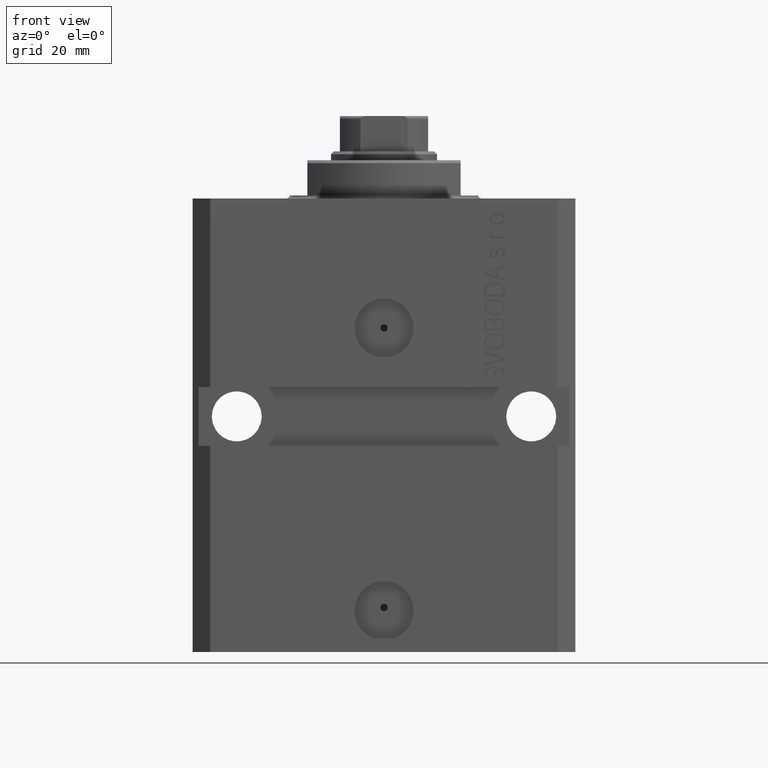
[diagram: clean part render]
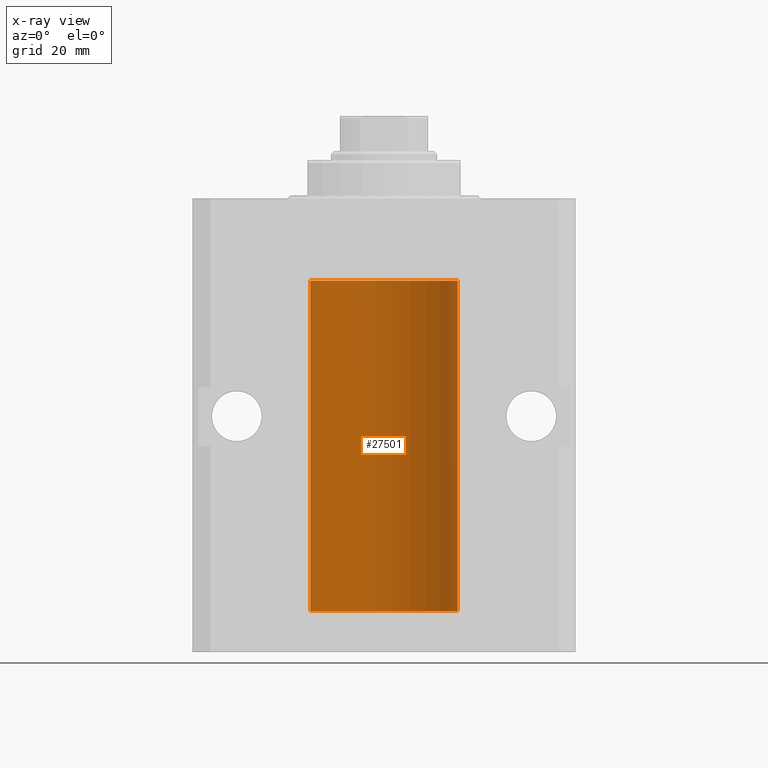
[diagram: x-ray — body ghosted, one internal face saturated and labeled with its STEP entity id]
A machine part, front view, then the same camera in x-ray: the body is ghosted and one INTERNAL B-rep face — a face not visible from any outside direction — is saturated and labeled: STEP entity #27501.
In plain terms, the highlighted cylindrical surface (partial cylindrical patch) has radius 12.5 mm, axis along (0, 0, 1).
Its self-contained STEP definition (entity closure, byte-faithful):
#30 = AXIS2_PLACEMENT_3D ( 'NONE', #15588, #19175, #33730 ) ;
#96 = CARTESIAN_POINT ( 'NONE',  ( -12.49011732893843885, 0.5003763274120245352, -65.38348111289289477 ) ) ;
#1081 = DIRECTION ( 'NONE',  ( -0.000000000000000000, -0.000000000000000000, 1.000000000000000000 ) ) ;
#2005 = VECTOR ( 'NONE', #7811, 1000.000000000000000 ) ;
#2309 = VECTOR ( 'NONE', #1081, 1000.000000000000000 ) ;
#2655 = DIRECTION ( 'NONE',  ( 0.000000000000000000, 0.000000000000000000, 1.000000000000000000 ) ) ;
#2970 = CARTESIAN_POINT ( 'NONE',  ( -12.49915784441386890, 0.1636601911727943726, -64.39126818989430490 ) ) ;
#3207 = CARTESIAN_POINT ( 'NONE',  ( -12.49631005746706514, 0.3253680783018499389, -65.55856740465391397 ) ) ;
#3441 = CARTESIAN_POINT ( 'NONE',  ( -12.48436813453758809, 0.6249418250771181516, -64.83668996798922990 ) ) ;
#4636 = ORIENTED_EDGE ( 'NONE', *, *, #45570, .T. ) ;
#4812 = LINE ( 'NONE', #19395, #15504 ) ;
#5045 = DIRECTION ( 'NONE',  ( 0.000000000000000000, 0.000000000000000000, 1.000000000000000000 ) ) ;
#5647 = EDGE_CURVE ( 'NONE', #22381, #33231, #24793, .T. ) ;
#6257 = AXIS2_PLACEMENT_3D ( 'NONE', #35347, #2655, #24627 ) ;
#6488 = CARTESIAN_POINT ( 'NONE',  ( 12.50000000000000000, 0.000000000000000000, -70.09999999999999432 ) ) ;
#6541 = CARTESIAN_POINT ( 'NONE',  ( -12.49999999999999645, 0.08260426088728485550, -64.37499999999998579 ) ) ;
#6938 = ORIENTED_EDGE ( 'NONE', *, *, #44147, .F. ) ;
#7555 = CIRCLE ( 'NONE', #21293, 12.50000000000000000 ) ;
#7811 = DIRECTION ( 'NONE',  ( -0.000000000000000000, -0.000000000000000000, 1.000000000000000000 ) ) ;
#8391 = ORIENTED_EDGE ( 'NONE', *, *, #33893, .F. ) ;
#8856 = VERTEX_POINT ( 'NONE', #25184 ) ;
#9507 = CARTESIAN_POINT ( 'NONE',  ( -12.50000000000000000, 1.530808498934191521E-15, -70.09999999999999432 ) ) ;
#9731 = CARTESIAN_POINT ( 'NONE',  ( -12.48436813453758454, 0.6249418250771192618, -21.83668996798922635 ) ) ;
#10165 = DIRECTION ( 'NONE',  ( -0.000000000000000000, -0.000000000000000000, 1.000000000000000000 ) ) ;
#10202 = CARTESIAN_POINT ( 'NONE',  ( -12.49625855304193678, 0.3150454781038042329, -21.45402800297484802 ) ) ;
#10310 = EDGE_CURVE ( 'NONE', #13379, #43181, #7555, .T. ) ;
#11658 = CARTESIAN_POINT ( 'NONE',  ( -12.50000000000000000, -2.089494013101375120E-17, -21.37499999999999645 ) ) ;
#11997 = EDGE_CURVE ( 'NONE', #43181, #33231, #40464, .T. ) ;
#12405 = EDGE_LOOP ( 'NONE', ( #17502, #26863, #4636, #16954, #8391, #14684, #6938, #17262 ) ) ;
#12479 = DIRECTION ( 'NONE',  ( -0.000000000000000000, -0.000000000000000000, 1.000000000000000000 ) ) ;
#13083 = CARTESIAN_POINT ( 'NONE',  ( -12.50000000000017941, 3.883381646606358354E-13, -22.62500000000358824 ) ) ;
#13379 = VERTEX_POINT ( 'NONE', #6488 ) ;
#13950 = CARTESIAN_POINT ( 'NONE',  ( -12.49625855304193500, 0.3150454781038046770, -64.45402800297485157 ) ) ;
#14194 = CARTESIAN_POINT ( 'NONE',  ( -12.49999999999999822, 0.1631761135151225950, -65.62499999999985789 ) ) ;
#14684 = ORIENTED_EDGE ( 'NONE', *, *, #38498, .T. ) ;
#14971 = LINE ( 'NONE', #40494, #2005 ) ;
#15442 = CARTESIAN_POINT ( 'NONE',  ( -12.50000000000000000, -2.089494013101375120E-17, -21.37499999999999645 ) ) ;
#15504 = VECTOR ( 'NONE', #12479, 1000.000000000000000 ) ;
#15588 = CARTESIAN_POINT ( 'NONE',  ( 0.000000000000000000, 0.000000000000000000, -70.09999999999999432 ) ) ;
#16171 = CARTESIAN_POINT ( 'NONE',  ( 12.50000000000000000, 0.000000000000000000, -13.99999999999999822 ) ) ;
#16954 = ORIENTED_EDGE ( 'NONE', *, *, #30166, .T. ) ;
#17108 = CARTESIAN_POINT ( 'NONE',  ( -12.48520330846397819, 0.6088355886774127201, -22.16325431852561323 ) ) ;
#17262 = ORIENTED_EDGE ( 'NONE', *, *, #5647, .T. ) ;
#17502 = ORIENTED_EDGE ( 'NONE', *, *, #11997, .F. ) ;
#19175 = DIRECTION ( 'NONE',  ( -0.000000000000000000, -0.000000000000000000, 1.000000000000000000 ) ) ;
#19395 = CARTESIAN_POINT ( 'NONE',  ( -12.50000000000000000, 1.530808498934191521E-15, -70.09999999999999432 ) ) ;
#19801 = VERTEX_POINT ( 'NONE', #16171 ) ;
#20942 = CARTESIAN_POINT ( 'NONE',  ( -12.48810268015257563, 0.5573155909661349217, -21.67347410093867666 ) ) ;
#21293 = AXIS2_PLACEMENT_3D ( 'NONE', #29898, #5045, #44430 ) ;
#22381 = VERTEX_POINT ( 'NONE', #37436 ) ;
#22634 = CARTESIAN_POINT ( 'NONE',  ( -12.49915784441386890, 0.1636601911727947889, -21.39126818989430490 ) ) ;
#22745 = CYLINDRICAL_SURFACE ( 'NONE', #30, 12.50000000000000000 ) ;
#23835 = CARTESIAN_POINT ( 'NONE',  ( -12.49999999999999289, 0.1631761135151241215, -22.62499999999984013 ) ) ;
#24069 = CARTESIAN_POINT ( 'NONE',  ( -12.49011732893843529, 0.5003763274120274218, -22.38348111289287701 ) ) ;
#24627 = DIRECTION ( 'NONE',  ( 1.000000000000000000, 0.000000000000000000, 0.000000000000000000 ) ) ;
#24757 = CARTESIAN_POINT ( 'NONE',  ( -12.48809959379011403, 0.5462151254764975317, -22.31461370481611795 ) ) ;
#24793 = B_SPLINE_CURVE_WITH_KNOTS ( 'NONE', 3,
 ( #39243, #6541, #2970, #13950, #46625, #28521, #3441, #39716, #43978, #35897, #96, #3207, #14194, #40654 ),
 .UNSPECIFIED., .F., .F.,
 ( 4, 2, 2, 2, 2, 2, 4 ),
 ( 3.492495172846855184E-18, 0.0002442924852390798859, 0.0004885849704781563023, 0.0009771699409563386254, 0.001221462426195450658, 0.001465754911434562473, 0.001954339881912786538 ),
 .UNSPECIFIED. ) ;
#25184 = CARTESIAN_POINT ( 'NONE',  ( -12.50000000000000000, 1.530808498934191521E-15, -13.99999999999999822 ) ) ;
#25815 = VERTEX_POINT ( 'NONE', #38695 ) ;
#26221 = CARTESIAN_POINT ( 'NONE',  ( -12.50000000000000000, 0.08260426088729219685, -21.37500000000000000 ) ) ;
#26385 = CARTESIAN_POINT ( 'NONE',  ( -12.50000000000000000, 1.530808498934191521E-15, -70.09999999999999432 ) ) ;
#26863 = ORIENTED_EDGE ( 'NONE', *, *, #10310, .F. ) ;
#27501 = ADVANCED_FACE ( 'NONE', ( #44453 ), #22745, .F. ) ;
#28521 = CARTESIAN_POINT ( 'NONE',  ( -12.48810268015257741, 0.5573155909661293705, -64.67347410093867666 ) ) ;
#29898 = CARTESIAN_POINT ( 'NONE',  ( 0.000000000000000000, 0.000000000000000000, -70.09999999999999432 ) ) ;
#30166 = EDGE_CURVE ( 'NONE', #19801, #8856, #45881, .T. ) ;
#31230 = CARTESIAN_POINT ( 'NONE',  ( -12.49422197749724006, 0.3843754434364375916, -21.50047099568095277 ) ) ;
#32554 = B_SPLINE_CURVE_WITH_KNOTS ( 'NONE', 3,
 ( #11658, #26221, #22634, #10202, #31230, #20942, #9731, #35022, #17108, #24757, #24069, #46227, #23835, #13083 ),
 .UNSPECIFIED., .F., .F.,
 ( 4, 2, 2, 2, 2, 2, 4 ),
 ( 2.030551168097110502E-20, 0.0002442924852390969078, 0.0004885849704781938157, 0.0009771699409563880650, 0.001221462426195485135, 0.001465754911434582423, 0.001954339881912776130 ),
 .UNSPECIFIED. ) ;
#33231 = VERTEX_POINT ( 'NONE', #40199 ) ;
#33730 = DIRECTION ( 'NONE',  ( 1.000000000000000000, 0.000000000000000000, 0.000000000000000000 ) ) ;
#33893 = EDGE_CURVE ( 'NONE', #39506, #8856, #4812, .T. ) ;
#35022 = CARTESIAN_POINT ( 'NONE',  ( -12.48436376893640443, 0.6250290278979917513, -22.08132082824473486 ) ) ;
#35347 = CARTESIAN_POINT ( 'NONE',  ( 0.000000000000000000, 0.000000000000000000, -13.99999999999999822 ) ) ;
#35897 = CARTESIAN_POINT ( 'NONE',  ( -12.48809959379011580, 0.5462151254764966435, -65.31461370481613926 ) ) ;
#37436 = CARTESIAN_POINT ( 'NONE',  ( -12.50000000000000000, -1.053276923642966949E-14, -64.37500000000000000 ) ) ;
#38498 = EDGE_CURVE ( 'NONE', #39506, #25815, #32554, .T. ) ;
#38695 = CARTESIAN_POINT ( 'NONE',  ( -12.50000000000017941, 3.883381646606358354E-13, -22.62500000000358824 ) ) ;
#39243 = CARTESIAN_POINT ( 'NONE',  ( -12.50000000000000000, -1.053276923642966949E-14, -64.37500000000000000 ) ) ;
#39506 = VERTEX_POINT ( 'NONE', #15442 ) ;
#39716 = CARTESIAN_POINT ( 'NONE',  ( -12.48436376893640265, 0.6250290278979918623, -65.08132082824472775 ) ) ;
#40144 = VECTOR ( 'NONE', #10165, 1000.000000000000000 ) ;
#40199 = CARTESIAN_POINT ( 'NONE',  ( -12.50000000000017941, 3.883381774819353300E-13, -65.62500000000359535 ) ) ;
#40464 = LINE ( 'NONE', #26385, #2309 ) ;
#40494 = CARTESIAN_POINT ( 'NONE',  ( -12.50000000000000000, 1.530808498934191521E-15, -70.09999999999999432 ) ) ;
#40654 = CARTESIAN_POINT ( 'NONE',  ( -12.50000000000017941, 3.883381774819353300E-13, -65.62500000000359535 ) ) ;
#42853 = CARTESIAN_POINT ( 'NONE',  ( 12.50000000000000000, 0.000000000000000000, -70.09999999999999432 ) ) ;
#43181 = VERTEX_POINT ( 'NONE', #9507 ) ;
#43978 = CARTESIAN_POINT ( 'NONE',  ( -12.48520330846398174, 0.6088355886774118320, -65.16325431852561678 ) ) ;
#44147 = EDGE_CURVE ( 'NONE', #22381, #25815, #14971, .T. ) ;
#44430 = DIRECTION ( 'NONE',  ( 1.000000000000000000, 0.000000000000000000, 0.000000000000000000 ) ) ;
#44453 = FACE_OUTER_BOUND ( 'NONE', #12405, .T. ) ;
#45570 = EDGE_CURVE ( 'NONE', #13379, #19801, #46195, .T. ) ;
#45881 = CIRCLE ( 'NONE', #6257, 12.50000000000000000 ) ;
#46195 = LINE ( 'NONE', #42853, #40144 ) ;
#46227 = CARTESIAN_POINT ( 'NONE',  ( -12.49631005746706336, 0.3253680783018528255, -22.55856740465392463 ) ) ;
#46625 = CARTESIAN_POINT ( 'NONE',  ( -12.49422197749724361, 0.3843754434364307082, -64.50047099568097053 ) ) ;